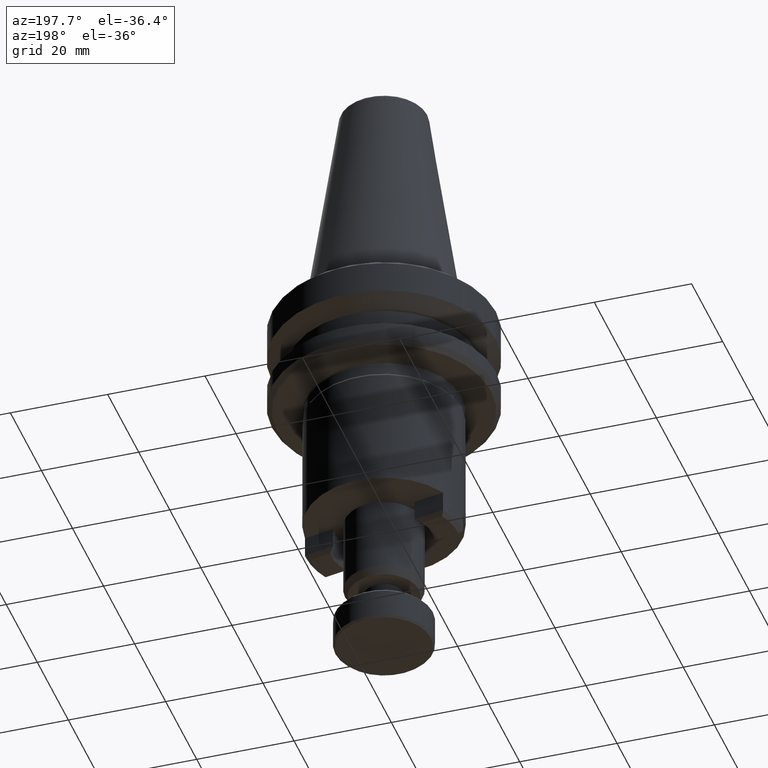
[diagram: clean part render]
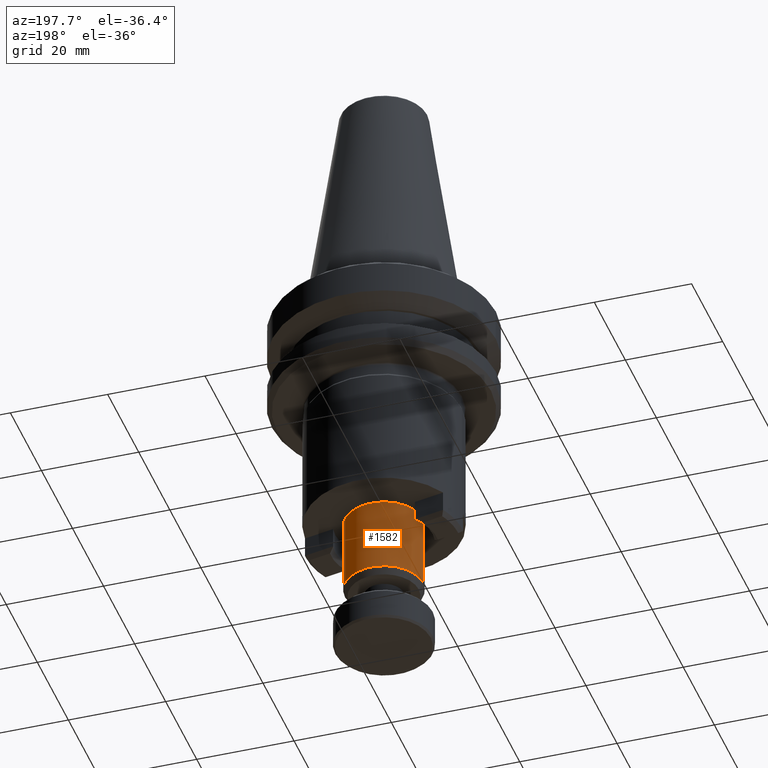
[diagram: same view with one face highlighted and labeled with its STEP entity id]
A machine part, auxiliary view. The second image highlights one B-rep face of the part: STEP entity #1582.
In plain terms, the highlighted cylindrical surface (partial cylindrical patch) has radius 8 mm, axis along (-0, -0, 1).
Its self-contained STEP definition (entity closure, byte-faithful):
#75 = AXIS2_PLACEMENT_3D ( 'NONE', #215, #549, #1674 ) ;
#86 = VECTOR ( 'NONE', #1578, 1000.000000000000000 ) ;
#112 = LINE ( 'NONE', #564, #1816 ) ;
#130 = DIRECTION ( 'NONE',  ( -1.000000000000000000, 0.0000000000000000000, 0.0000000000000000000 ) ) ;
#140 = LINE ( 'NONE', #278, #86 ) ;
#146 = EDGE_CURVE ( 'NONE', #1747, #328, #1455, .T. ) ;
#215 = CARTESIAN_POINT ( 'NONE',  ( -5.371641434294360800, 1.568325594917041600, -54.45871210289601500 ) ) ;
#278 = CARTESIAN_POINT ( 'NONE',  ( -13.37164143429436800, 1.568325594917042700, 75.33775355038541500 ) ) ;
#324 = ORIENTED_EDGE ( 'NONE', *, *, #1698, .T. ) ;
#328 = VERTEX_POINT ( 'NONE', #1677 ) ;
#363 = CIRCLE ( 'NONE', #1171, 8.000000000000007100 ) ;
#370 = ORIENTED_EDGE ( 'NONE', *, *, #1022, .F. ) ;
#468 = CARTESIAN_POINT ( 'NONE',  ( 2.628358565705646300, 1.568325594917041600, -54.45871210289601500 ) ) ;
#549 = DIRECTION ( 'NONE',  ( -0.0000000000000000000, -0.0000000000000000000, 1.000000000000000000 ) ) ;
#564 = CARTESIAN_POINT ( 'NONE',  ( 2.628358565705646300, 1.568325594917041600, 75.33775355038541500 ) ) ;
#570 = CARTESIAN_POINT ( 'NONE',  ( 2.628358565705646300, 1.568325594917041600, -38.93095528733178400 ) ) ;
#708 = EDGE_LOOP ( 'NONE', ( #1407, #324, #1063, #370 ) ) ;
#798 = DIRECTION ( 'NONE',  ( 0.0000000000000000000, 0.0000000000000000000, -1.000000000000000000 ) ) ;
#1022 = EDGE_CURVE ( 'NONE', #1747, #1045, #112, .T. ) ;
#1045 = VERTEX_POINT ( 'NONE', #570 ) ;
#1050 = DIRECTION ( 'NONE',  ( -0.0000000000000000000, -0.0000000000000000000, 1.000000000000000000 ) ) ;
#1063 = ORIENTED_EDGE ( 'NONE', *, *, #1790, .T. ) ;
#1171 = AXIS2_PLACEMENT_3D ( 'NONE', #2103, #798, #130 ) ;
#1202 = CARTESIAN_POINT ( 'NONE',  ( -5.371641434294360800, 1.568325594917041600, 75.33775355038541500 ) ) ;
#1208 = AXIS2_PLACEMENT_3D ( 'NONE', #1202, #1050, #1694 ) ;
#1217 = DIRECTION ( 'NONE',  ( -0.0000000000000000000, -0.0000000000000000000, 1.000000000000000000 ) ) ;
#1407 = ORIENTED_EDGE ( 'NONE', *, *, #146, .T. ) ;
#1455 = CIRCLE ( 'NONE', #75, 8.000000000000007100 ) ;
#1527 = CYLINDRICAL_SURFACE ( 'NONE', #1208, 8.000000000000007100 ) ;
#1578 = DIRECTION ( 'NONE',  ( -0.0000000000000000000, -0.0000000000000000000, 1.000000000000000000 ) ) ;
#1582 = ADVANCED_FACE ( 'NONE', ( #2068 ), #1527, .T. ) ;
#1674 = DIRECTION ( 'NONE',  ( 1.000000000000000000, 0.0000000000000000000, 0.0000000000000000000 ) ) ;
#1677 = CARTESIAN_POINT ( 'NONE',  ( -13.37164143429436800, 1.568325594917042500, -54.45871210289601500 ) ) ;
#1694 = DIRECTION ( 'NONE',  ( 1.000000000000000000, 0.0000000000000000000, 0.0000000000000000000 ) ) ;
#1698 = EDGE_CURVE ( 'NONE', #328, #1896, #140, .T. ) ;
#1747 = VERTEX_POINT ( 'NONE', #468 ) ;
#1790 = EDGE_CURVE ( 'NONE', #1896, #1045, #363, .T. ) ;
#1816 = VECTOR ( 'NONE', #1217, 1000.000000000000000 ) ;
#1896 = VERTEX_POINT ( 'NONE', #1941 ) ;
#1941 = CARTESIAN_POINT ( 'NONE',  ( -13.37164143429436800, 1.568325594917042700, -38.93095528733178400 ) ) ;
#2068 = FACE_OUTER_BOUND ( 'NONE', #708, .T. ) ;
#2103 = CARTESIAN_POINT ( 'NONE',  ( -5.371641434294360800, 1.568325594917041600, -38.93095528733178400 ) ) ;